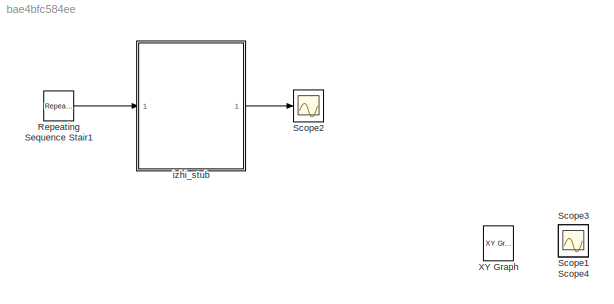
MODEL slx_bae4bfc584ee
KIND model
CONFIG AbsTol = auto
CONFIG EnableMultiTasking = off
CONFIG FixedStep = 0.001
CONFIG MaxStep = auto
CONFIG MinStep = auto
CONFIG RelTol = 1e-3
CONFIG SampleTimeConstraint = Unconstrained
CONFIG SolverName = FixedStepAuto
CONFIG StartTime = 0.0
CONFIG StopTime = 0.5
BLOCK [Reference] Repeating Sequence Stair1  REF=simulink/Sources/Repeating
Sequence
Stair
  Ports = [0, 1]
  SourceBlock = simulink/Sources/Repeating\nSequence\nStair
  SourceProductBaseCode = SL
  SourceType = Repeating Sequence Stair
BLOCK [Scope] Scope1
  Floating = off
  IOType = viewer
  NumInputPorts = 1
  Ports = []
  ScopeSpecificationString = Simulink.scopes.TimeScopeBlockCfg('CurrentConfiguration', extmgr.ConfigurationSet(extmgr.Configuration('Core','General UI',true),extmgr.Configuration('Core','Source UI',true),extmgr.Configuration('Sources','WiredSimulink',true,'DataLoggingVariableName','ScopeData1'),extmgr.Configuration('Visuals','Time Domain',true,'SerializedDisplays',{struct('MinYLimReal','-0.24987','MaxYLimReal','2.24887','YLab...<+1435ch>
BLOCK [Scope] Scope2
  Floating = off
  NumInputPorts = 1
  Ports = [1]
  ScopeSpecificationString = Simulink.scopes.TimeScopeBlockCfg('CurrentConfiguration', extmgr.ConfigurationSet(extmgr.Configuration('Core','General UI',true),extmgr.Configuration('Core','Source UI',true),extmgr.Configuration('Sources','WiredSimulink',true,'DataLoggingVariableName','ScopeData1'),extmgr.Configuration('Visuals','Time Domain',true),extmgr.Configuration('Tools','Plot Navigation',true),extmgr.Configuration('Tools',...<+40ch>
BLOCK [Scope] Scope3
  Floating = off
  IOType = viewer
  NumInputPorts = 1
  Ports = []
  ScopeSpecificationString = Simulink.scopes.TimeScopeBlockCfg('CurrentConfiguration', extmgr.ConfigurationSet(extmgr.Configuration('Core','General UI',true),extmgr.Configuration('Core','Source UI',true),extmgr.Configuration('Sources','WiredSimulink',true,'DataLoggingVariableName','ScopeData3'),extmgr.Configuration('Visuals','Time Domain',true,'SerializedDisplays',{struct('MinYLimReal','-103.72127','MaxYLimReal','38.33358','Y...<+1371ch>
BLOCK [Scope] Scope4
  Floating = off
  IOType = viewer
  NumInputPorts = 1
  Ports = []
  ScopeSpecificationString = Simulink.scopes.TimeScopeBlockCfg('CurrentConfiguration', extmgr.ConfigurationSet(extmgr.Configuration('Core','General UI',true),extmgr.Configuration('Core','Source UI',true),extmgr.Configuration('Sources','WiredSimulink',true,'DataLoggingVariableName','ScopeData4'),extmgr.Configuration('Visuals','Time Domain',true,'SerializedDisplays',{struct('MinYLimReal','-20.75486','MaxYLimReal','56.79378','YL...<+1365ch>
BLOCK [Reference] XY Graph  REF=simulink/Sinks/XY Graph
  IOType = viewer
  Ports = [2]
  SourceBlock = simulink/Sinks/XY Graph
  SourceProductBaseCode = SL
  SourceType = XY scope.
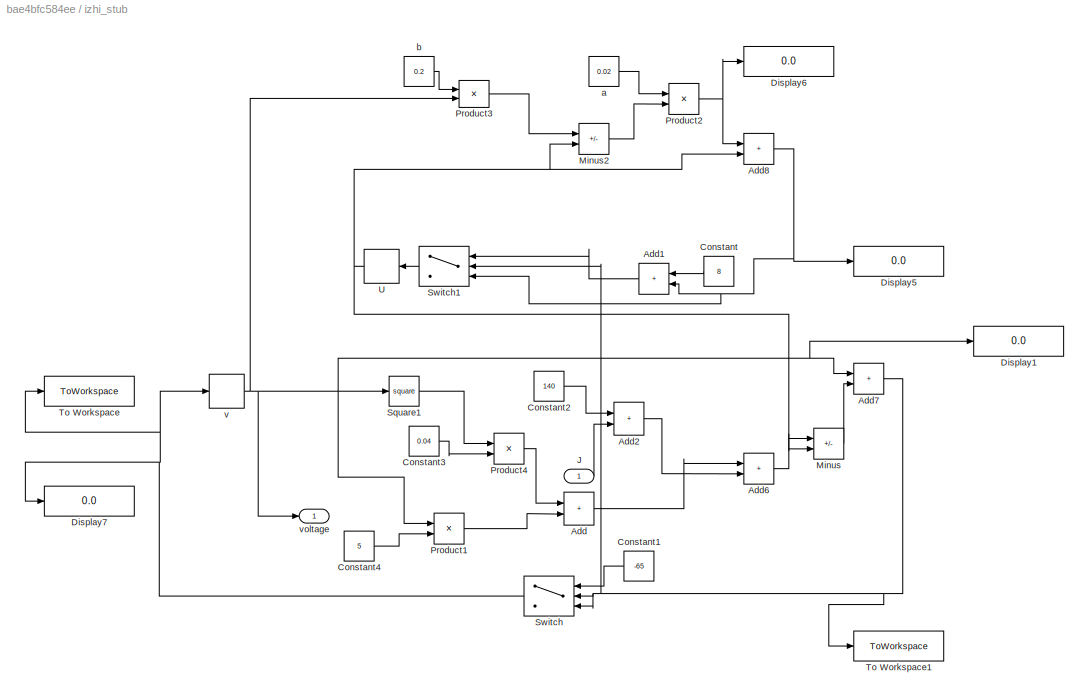
BLOCK [SubSystem] izhi_stub
  Ports = [1, 1]
  RequestExecContextInheritance = off
BLOCK [Sum] izhi_stub/Add
  IconShape = rectangular
  Ports = [2, 1]
BLOCK [Sum] izhi_stub/Add1
  IconShape = rectangular
  Ports = [2, 1]
BLOCK [Sum] izhi_stub/Add2
  IconShape = rectangular
  Ports = [2, 1]
BLOCK [Sum] izhi_stub/Add6
  IconShape = rectangular
  Ports = [2, 1]
BLOCK [Sum] izhi_stub/Add7
  IconShape = rectangular
  Ports = [2, 1]
BLOCK [Sum] izhi_stub/Add8
  IconShape = rectangular
  Ports = [2, 1]
BLOCK [Constant] izhi_stub/Constant
  Value = 8
BLOCK [Constant] izhi_stub/Constant1
  Value = -65
BLOCK [Constant] izhi_stub/Constant2
  Value = 140
BLOCK [Constant] izhi_stub/Constant3
  Value = 0.04
BLOCK [Constant] izhi_stub/Constant4
  Value = 5
BLOCK [Display] izhi_stub/Display1
  Decimation = 1
  Ports = [1]
BLOCK [Display] izhi_stub/Display5
  Decimation = 1
  Ports = [1]
BLOCK [Display] izhi_stub/Display6
  Decimation = 1
  Ports = [1]
BLOCK [Display] izhi_stub/Display7
  Decimation = 1
  Ports = [1]
BLOCK [Inport] izhi_stub/J
BLOCK [Sum] izhi_stub/Minus
  IconShape = rectangular
  Inputs = +-
  Ports = [2, 1]
BLOCK [Sum] izhi_stub/Minus2
  IconShape = rectangular
  Inputs = +-
  Ports = [2, 1]
BLOCK [Product] izhi_stub/Product1
  Ports = [2, 1]
BLOCK [Product] izhi_stub/Product2
  Ports = [2, 1]
BLOCK [Product] izhi_stub/Product3
  Ports = [2, 1]
BLOCK [Product] izhi_stub/Product4
  Ports = [2, 1]
BLOCK [Math] izhi_stub/Square1
  Operator = square
  Ports = [1, 1]
BLOCK [Switch] izhi_stub/Switch
  Criteria = u2 > Threshold
  InputSameDT = off
  SaturateOnIntegerOverflow = off
  Threshold = 30
BLOCK [Switch] izhi_stub/Switch1
  Criteria = u2 > Threshold
  InputSameDT = off
  NameLocation = top
  SaturateOnIntegerOverflow = off
  Threshold = 30
BLOCK [ToWorkspace] izhi_stub/To Workspace
  FixptAsFi = on
  MaxDataPoints = inf
  Ports = [1]
  SampleTime = -1
  SaveFormat = Timeseries
  VariableName = vend
BLOCK [ToWorkspace] izhi_stub/To Workspace1
  FixptAsFi = on
  MaxDataPoints = inf
  Ports = [1]
  SampleTime = -1
  SaveFormat = Timeseries
  VariableName = vend1
BLOCK [Delay] izhi_stub/U
  DelayLength = 1
  InitialCondition = 0
  InputPortMap = u0
  Ports = [1, 1]
BLOCK [Constant] izhi_stub/a
  Value = 0.02
BLOCK [Constant] izhi_stub/b
  Value = 0.2
BLOCK [Delay] izhi_stub/v
  DelayLength = 1
  InitialCondition = -65
  InputPortMap = u0
  NameLocation = top
  Ports = [1, 1]
BLOCK [Outport] izhi_stub/voltage
  NameLocation = top
  VectorParamsAs1DForOutWhenUnconnected = off
LINE Repeating Sequence Stair1:1 -> izhi_stub:1
LINE izhi_stub/Add1:1 -> izhi_stub/Switch1:1
LINE izhi_stub/Add2:1 -> izhi_stub/Add6:2
LINE izhi_stub/Add6:1 -> izhi_stub/Minus:1
NET izhi_stub/Add7:1 -> izhi_stub/Switch1:2, izhi_stub/Switch:2, izhi_stub/Switch:3, izhi_stub/To Workspace1:1
NET izhi_stub/Add8:1 -> izhi_stub/Add1:2, izhi_stub/Display5:1, izhi_stub/Switch1:3
LINE izhi_stub/Add:1 -> izhi_stub/Add6:1
LINE izhi_stub/Constant1:1 -> izhi_stub/Switch:1
LINE izhi_stub/Constant2:1 -> izhi_stub/Add2:1
LINE izhi_stub/Constant3:1 -> izhi_stub/Product4:2
LINE izhi_stub/Constant4:1 -> izhi_stub/Product1:2
LINE izhi_stub/Constant:1 -> izhi_stub/Add1:1
LINE izhi_stub/J:1 -> izhi_stub/Add2:2
LINE izhi_stub/Minus2:1 -> izhi_stub/Product2:2
LINE izhi_stub/Minus:1 -> izhi_stub/Add7:2
LINE izhi_stub/Product1:1 -> izhi_stub/Add:2
NET izhi_stub/Product2:1 -> izhi_stub/Add8:1, izhi_stub/Display6:1
LINE izhi_stub/Product3:1 -> izhi_stub/Minus2:1
LINE izhi_stub/Product4:1 -> izhi_stub/Add:1
LINE izhi_stub/Square1:1 -> izhi_stub/Product4:1
LINE izhi_stub/Switch1:1 -> izhi_stub/U:1
NET izhi_stub/Switch:1 -> izhi_stub/Display7:1, izhi_stub/To Workspace:1, izhi_stub/v:1
NET izhi_stub/U:1 -> izhi_stub/Add8:2, izhi_stub/Minus2:2, izhi_stub/Minus:2
LINE izhi_stub/a:1 -> izhi_stub/Product2:1
LINE izhi_stub/b:1 -> izhi_stub/Product3:1
NET izhi_stub/v:1 -> izhi_stub/Add7:1, izhi_stub/Display1:1, izhi_stub/Product1:1, izhi_stub/Product3:2, izhi_stub/Square1:1, izhi_stub/voltage:1
LINE izhi_stub:1 -> Scope2:1
note: NET lines group one-source signal fan-out (src -> all destinations, sorted); 1:1 wires keep LINE
